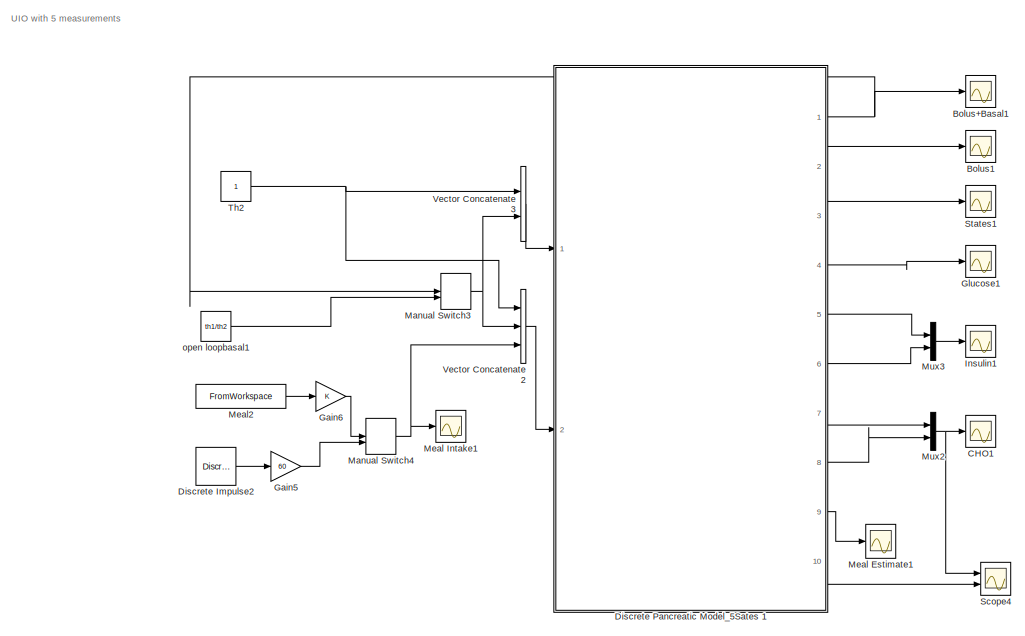
[diagram: root canvas - part 1/2, right side, full height]
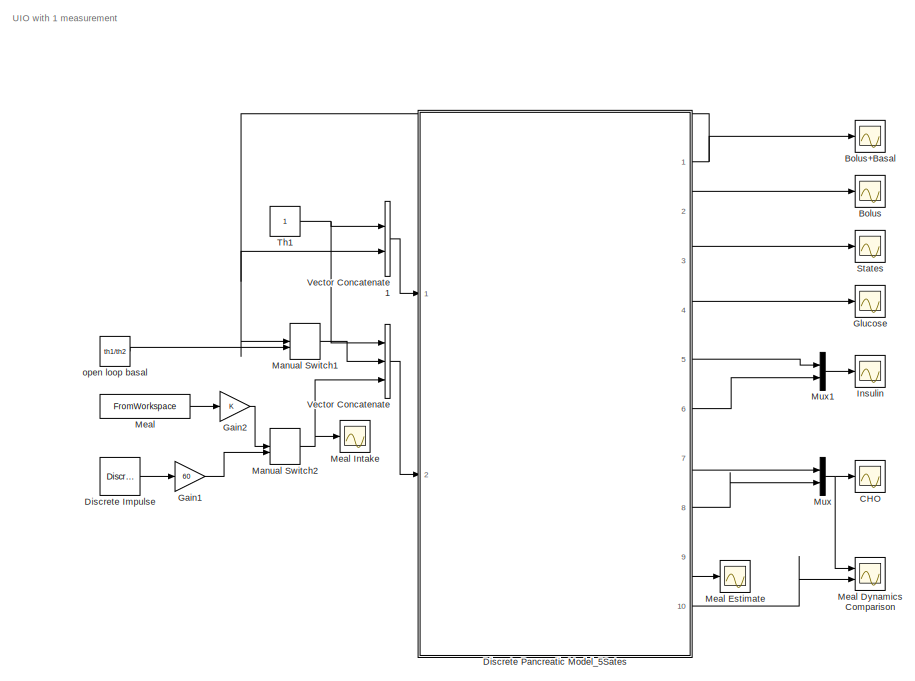
[diagram: root canvas - part 2/2, left side, full height]
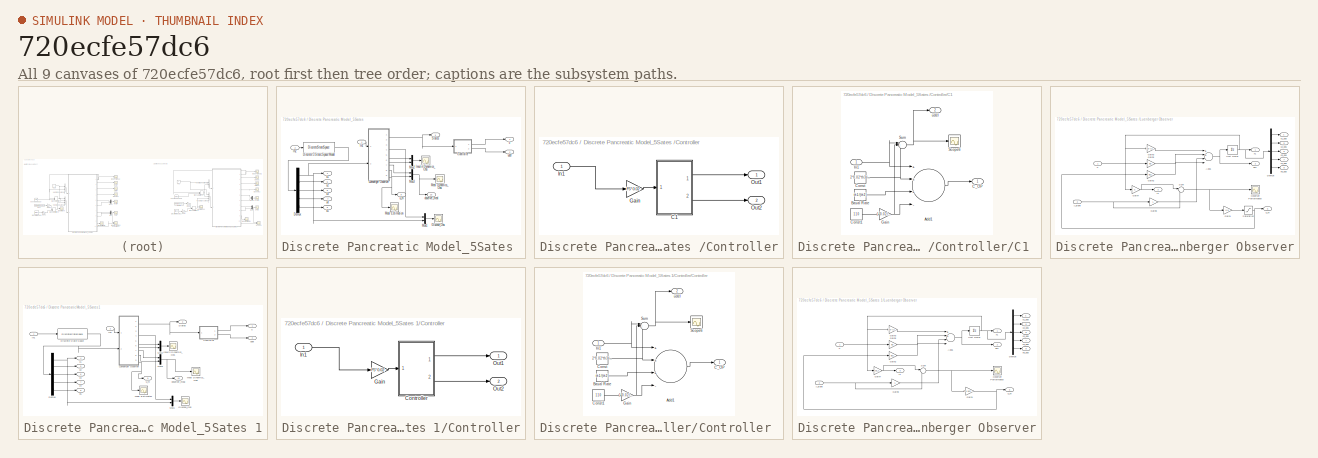
[diagram: thumbnail index - all 9 canvases of the model, root first then tree order]
MODEL slx_720ecfe57dc6
KIND model
CONFIG AbsTol = auto
CONFIG EnableMultiTasking = off
CONFIG FixedStep = auto
CONFIG MaxStep = auto
CONFIG MinStep = auto
CONFIG RelTol = 1e-3
CONFIG SampleTimeConstraint = Unconstrained
CONFIG Solver = VariableStepAuto
CONFIG SolverName = VariableStepAuto
CONFIG StartTime = 0.0
CONFIG StopTime = 1500.0
BLOCK [Scope] Bolus
  Floating = off
  NumInputPorts = 1
  Ports = [1]
  ScopeSpecificationString = Simulink.scopes.TimeScopeBlockCfg('CurrentConfiguration', extmgr.ConfigurationSet(extmgr.Configuration('Core','General UI',true),extmgr.Configuration('Core','Source UI',true),extmgr.Configuration('Sources','WiredSimulink',true,'DataLoggingVariableName','ScopeData3'),extmgr.Configuration('Visuals','Time Domain',true,'SerializedDisplays',{struct('MinYLimReal','-0.01076','MaxYLimReal','0.0901','YLabe...<+1546ch>
BLOCK [Scope] Bolus+Basal
  Floating = off
  NumInputPorts = 1
  Ports = [1]
  ScopeSpecificationString = Simulink.scopes.TimeScopeBlockCfg('CurrentConfiguration', extmgr.ConfigurationSet(extmgr.Configuration('Core','General UI',true,'FigureColor',[1 1 1]),extmgr.Configuration('Core','Source UI',true),extmgr.Configuration('Sources','WiredSimulink',true,'DataLoggingVariableName','ScopeData5'),extmgr.Configuration('Visuals','Time Domain',true,'SerializedDisplays',{struct('MinYLimReal','0.00624','MaxYLim...<+1638ch>
BLOCK [Scope] Bolus+Basal1
  Floating = off
  NumInputPorts = 1
  Ports = [1]
  ScopeSpecificationString = Simulink.scopes.TimeScopeBlockCfg('CurrentConfiguration', extmgr.ConfigurationSet(extmgr.Configuration('Core','General UI',true,'FigureColor',[1 1 1]),extmgr.Configuration('Core','Source UI',true),extmgr.Configuration('Sources','WiredSimulink',true,'DataLoggingVariableName','ScopeData6'),extmgr.Configuration('Visuals','Time Domain',true,'SerializedDisplays',{struct('MinYLimReal','0.00624','MaxYLim...<+1638ch>
BLOCK [Scope] Bolus1
  Floating = off
  NumInputPorts = 1
  Ports = [1]
  ScopeSpecificationString = Simulink.scopes.TimeScopeBlockCfg('CurrentConfiguration', extmgr.ConfigurationSet(extmgr.Configuration('Core','General UI',true),extmgr.Configuration('Core','Source UI',true),extmgr.Configuration('Sources','WiredSimulink',true,'DataLoggingVariableName','ScopeData3'),extmgr.Configuration('Visuals','Time Domain',true,'SerializedDisplays',{struct('MinYLimReal','-0.01076','MaxYLimReal','0.0901','YLabe...<+1546ch>
BLOCK [Scope] CHO
  Floating = off
  NumInputPorts = 1
  Ports = [1]
  ScopeSpecificationString = Simulink.scopes.TimeScopeBlockCfg('CurrentConfiguration', extmgr.ConfigurationSet(extmgr.Configuration('Core','General UI',true,'FigureColor',[1 1 1]),extmgr.Configuration('Core','Source UI',true),extmgr.Configuration('Sources','WiredSimulink',true,'DataLoggingVariableName','ScopeData7'),extmgr.Configuration('Visuals','Time Domain',true,'SerializedDisplays',{struct('MinYLimReal','-0.07549','MaxYLi...<+1869ch>
BLOCK [Scope] CHO1
  Floating = off
  NumInputPorts = 1
  Ports = [1]
  ScopeSpecificationString = Simulink.scopes.TimeScopeBlockCfg('CurrentConfiguration', extmgr.ConfigurationSet(extmgr.Configuration('Core','General UI',true,'FigureColor',[1 1 1]),extmgr.Configuration('Core','Source UI',true),extmgr.Configuration('Sources','WiredSimulink',true,'DataLoggingVariableName','ScopeData8'),extmgr.Configuration('Visuals','Time Domain',true,'SerializedDisplays',{struct('MinYLimReal','-0.07549','MaxYLi...<+1869ch>
BLOCK [Reference] Discrete Impulse  REF=dspsrcs4/Discrete 
Impulse
  Ports = [0, 1]
  SourceBlock = dspsrcs4/Discrete \nImpulse
  SourceProductBaseCode = DS
  SourceProductName = DSP System Toolbox
  SourceType = Discrete Impulse
BLOCK [Reference] Discrete Impulse2  REF=dspsrcs4/Discrete 
Impulse
  Ports = [0, 1]
  SourceBlock = dspsrcs4/Discrete \nImpulse
  SourceProductBaseCode = DS
  SourceProductName = DSP System Toolbox
  SourceType = Discrete Impulse
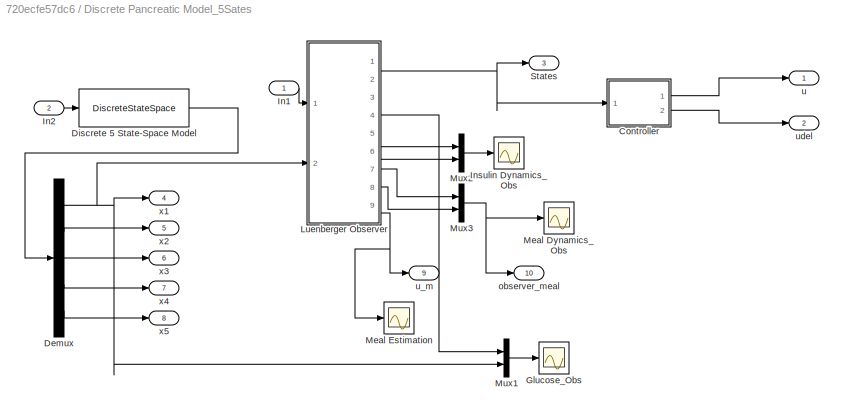
BLOCK [SubSystem] Discrete Pancreatic Model_5Sates 
  Ports = [2, 10]
  RequestExecContextInheritance = off
BLOCK [SubSystem] Discrete Pancreatic Model_5Sates /Controller
  Ports = [1, 2]
  RequestExecContextInheritance = off
BLOCK [SubSystem] Discrete Pancreatic Model_5Sates /Controller/C1 
  Ports = [1, 2]
  RequestExecContextInheritance = off
BLOCK [Sum] Discrete Pancreatic Model_5Sates /Controller/C1 /Add1
  InputSameDT = off
  Inputs = +++-
  OutDataTypeStr = Inherit: Inherit via internal rule
  Ports = [4, 1]
  SaturateOnIntegerOverflow = off
BLOCK [Constant] Discrete Pancreatic Model_5Sates /Controller/C1 /Basal Rate
  Value = th1/(th2)
  VectorParams1D = off
BLOCK [Outport] Discrete Pancreatic Model_5Sates /Controller/C1 /C_OP
  IconDisplay = Port number
BLOCK [Constant] Discrete Pancreatic Model_5Sates /Controller/C1 /Const
  Value = 2*0.02*th3*th1/(th2)
  VectorParams1D = off
BLOCK [Constant] Discrete Pancreatic Model_5Sates /Controller/C1 /Const1
  Value = 110
  VectorParams1D = off
BLOCK [Gain] Discrete Pancreatic Model_5Sates /Controller/C1 /Gain
  Gain = 1*0.02/(th2)
  OutDataTypeStr = Inherit: Inherit via internal rule
  ParamDataTypeStr = Inherit: Inherit via internal rule
  SaturateOnIntegerOverflow = off
BLOCK [Inport] Discrete Pancreatic Model_5Sates /Controller/C1 /In1
  IconDisplay = Port number
BLOCK [Scope] Discrete Pancreatic Model_5Sates /Controller/C1 /Scope6
  Floating = off
  NumInputPorts = 1
  Ports = [1]
  ScopeSpecificationString = Simulink.scopes.TimeScopeBlockCfg('CurrentConfiguration', extmgr.ConfigurationSet(extmgr.Configuration('Core','General UI',true),extmgr.Configuration('Core','Source UI',true),extmgr.Configuration('Sources','WiredSimulink',true,'DataLoggingVariableName','ScopeData2'),extmgr.Configuration('Visuals','Time Domain',true,'SerializedDisplays',{struct('MinYLimReal','-0.02864','MaxYLimReal','0.20318','YLab...<+1406ch>
BLOCK [Sum] Discrete Pancreatic Model_5Sates /Controller/C1 /Sum
  IconShape = round
  InputSameDT = off
  Inputs = |+-+
  OutDataTypeStr = Inherit: Inherit via internal rule
  Ports = [3, 1]
  SaturateOnIntegerOverflow = off
BLOCK [Outport] Discrete Pancreatic Model_5Sates /Controller/C1 /udel
  IconDisplay = Port number
  Port = 2
BLOCK [Gain] Discrete Pancreatic Model_5Sates /Controller/Gain
  Gain = F5*0.02
  Multiplication = Matrix(K*u)
  OutDataTypeStr = Inherit: Inherit via internal rule
  ParamDataTypeStr = Inherit: Inherit via internal rule
  SaturateOnIntegerOverflow = off
BLOCK [Inport] Discrete Pancreatic Model_5Sates /Controller/In1
  IconDisplay = Port number
BLOCK [Outport] Discrete Pancreatic Model_5Sates /Controller/Out1
  IconDisplay = Port number
BLOCK [Outport] Discrete Pancreatic Model_5Sates /Controller/Out2
  IconDisplay = Port number
  Port = 2
BLOCK [Demux] Discrete Pancreatic Model_5Sates /Demux
  DisplayOption = bar
  Outputs = 5
  Ports = [1, 5]
BLOCK [DiscreteStateSpace] Discrete Pancreatic Model_5Sates /Discrete 5 State-Space Model
  A = A5
  B = B5
  C = C5
  D = D5
  InitialCondition = [110; th1/th2; th1/th2; 0; 0]
  SampleTime = -1
  StateName = Glycemia
BLOCK [Scope] Discrete Pancreatic Model_5Sates /Glucose_Obs
  Floating = off
  NumInputPorts = 1
  Ports = [1]
  ScopeSpecificationString = Simulink.scopes.TimeScopeBlockCfg('CurrentConfiguration', extmgr.ConfigurationSet(extmgr.Configuration('Core','General UI',true,'FigureColor',[1 1 1]),extmgr.Configuration('Core','Source UI',true),extmgr.Configuration('Sources','WiredSimulink',true,'DataLoggingVariableName','ScopeData1'),extmgr.Configuration('Visuals','Time Domain',true,'SerializedDisplays',{struct('MinYLimReal','81.83648','MaxYLi...<+1861ch>
BLOCK [Inport] Discrete Pancreatic Model_5Sates /In1
  IconDisplay = Port number
BLOCK [Inport] Discrete Pancreatic Model_5Sates /In2
  IconDisplay = Port number
  Port = 2
BLOCK [Scope] Discrete Pancreatic Model_5Sates /Insulin Dynamics_Obs
  Floating = off
  NumInputPorts = 1
  Ports = [1]
  ScopeSpecificationString = Simulink.scopes.TimeScopeBlockCfg('CurrentConfiguration', extmgr.ConfigurationSet(extmgr.Configuration('Core','General UI',true,'FigureColor',[1 1 1]),extmgr.Configuration('Core','Source UI',true),extmgr.Configuration('Sources','WiredSimulink',true,'DataLoggingVariableName','ScopeData2'),extmgr.Configuration('Visuals','Time Domain',true,'SerializedDisplays',{struct('MinYLimReal','0.00955','MaxYLim...<+1889ch>
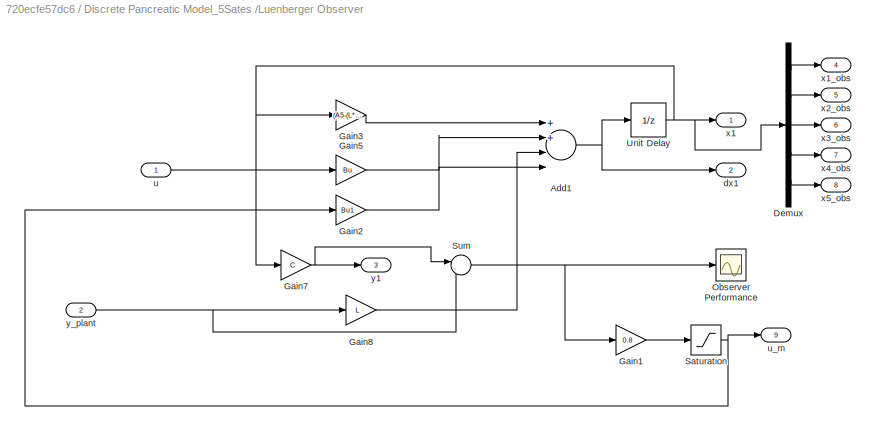
BLOCK [SubSystem] Discrete Pancreatic Model_5Sates /Luenberger Observer
  Ports = [2, 9]
  RequestExecContextInheritance = off
BLOCK [Sum] Discrete Pancreatic Model_5Sates /Luenberger Observer/Add1
  InputSameDT = off
  Inputs = 4
  OutDataTypeStr = Inherit: Inherit via internal rule
  Ports = [4, 1]
  SaturateOnIntegerOverflow = off
BLOCK [Demux] Discrete Pancreatic Model_5Sates /Luenberger Observer/Demux
  DisplayOption = bar
  Outputs = 5
  Ports = [1, 5]
BLOCK [Gain] Discrete Pancreatic Model_5Sates /Luenberger Observer/Gain1
  Gain = 0.8
  Multiplication = Matrix(K*u)
  OutDataTypeStr = Inherit: Inherit via internal rule
  ParamDataTypeStr = Inherit: Inherit via internal rule
  SaturateOnIntegerOverflow = off
BLOCK [Gain] Discrete Pancreatic Model_5Sates /Luenberger Observer/Gain2
  Gain = Bu1
  Multiplication = Matrix(K*u)
  OutDataTypeStr = Inherit: Inherit via internal rule
  ParamDataTypeStr = Inherit: Inherit via internal rule
  SaturateOnIntegerOverflow = off
BLOCK [Gain] Discrete Pancreatic Model_5Sates /Luenberger Observer/Gain3
  Gain = (A5-(L*C))
  Multiplication = Matrix(K*u)
  OutDataTypeStr = Inherit: Inherit via internal rule
  ParamDataTypeStr = Inherit: Inherit via internal rule
  SaturateOnIntegerOverflow = off
BLOCK [Gain] Discrete Pancreatic Model_5Sates /Luenberger Observer/Gain5
  Gain = Bu
  Multiplication = Matrix(K*u)
  OutDataTypeStr = Inherit: Inherit via internal rule
  ParamDataTypeStr = Inherit: Inherit via internal rule
  SaturateOnIntegerOverflow = off
BLOCK [Gain] Discrete Pancreatic Model_5Sates /Luenberger Observer/Gain7
  Gain = C
  Multiplication = Matrix(K*u)
  OutDataTypeStr = Inherit: Inherit via internal rule
  ParamDataTypeStr = Inherit: Inherit via internal rule
  SaturateOnIntegerOverflow = off
BLOCK [Gain] Discrete Pancreatic Model_5Sates /Luenberger Observer/Gain8
  Gain = L
  OutDataTypeStr = Inherit: Inherit via internal rule
  ParamDataTypeStr = Inherit: Inherit via internal rule
  SaturateOnIntegerOverflow = off
BLOCK [Scope] Discrete Pancreatic Model_5Sates /Luenberger Observer/Observer Performance
  Floating = off
  NumInputPorts = 1
  Ports = [1]
  ScopeSpecificationString = Simulink.scopes.TimeScopeBlockCfg('CurrentConfiguration', extmgr.ConfigurationSet(extmgr.Configuration('Core','General UI',true,'FigureColor',[1 1 1]),extmgr.Configuration('Core','Source UI',true),extmgr.Configuration('Sources','WiredSimulink',true,'DataLoggingVariableName','ScopeData1'),extmgr.Configuration('Visuals','Time Domain',true,'SerializedDisplays',{struct('MinYLimReal','-0.16609','MaxYLi...<+1708ch>
BLOCK [Saturate] Discrete Pancreatic Model_5Sates /Luenberger Observer/Saturation
  InputPortMap = u0
  LowerLimit = 0
  Ports = [1, 1]
  UpperLimit = 30
BLOCK [Sum] Discrete Pancreatic Model_5Sates /Luenberger Observer/Sum
  IconShape = round
  InputSameDT = off
  Inputs = |-+
  OutDataTypeStr = Inherit: Inherit via internal rule
  Ports = [2, 1]
  SaturateOnIntegerOverflow = off
BLOCK [UnitDelay] Discrete Pancreatic Model_5Sates /Luenberger Observer/Unit Delay
  HasFrameUpgradeWarning = on
  InitialCondition = [110; th1/th2; th1/th2; 0; 0]
  SampleTime = -1
BLOCK [Outport] Discrete Pancreatic Model_5Sates /Luenberger Observer/dx1
  IconDisplay = Port number
  Port = 2
BLOCK [Inport] Discrete Pancreatic Model_5Sates /Luenberger Observer/u
  IconDisplay = Port number
BLOCK [Outport] Discrete Pancreatic Model_5Sates /Luenberger Observer/u_m
  IconDisplay = Port number
  Port = 9
BLOCK [Outport] Discrete Pancreatic Model_5Sates /Luenberger Observer/x1
  IconDisplay = Port number
BLOCK [Outport] Discrete Pancreatic Model_5Sates /Luenberger Observer/x1_obs
  IconDisplay = Port number
  Port = 4
BLOCK [Outport] Discrete Pancreatic Model_5Sates /Luenberger Observer/x2_obs
  IconDisplay = Port number
  Port = 5
BLOCK [Outport] Discrete Pancreatic Model_5Sates /Luenberger Observer/x3_obs
  IconDisplay = Port number
  Port = 6
BLOCK [Outport] Discrete Pancreatic Model_5Sates /Luenberger Observer/x4_obs
  IconDisplay = Port number
  Port = 7
BLOCK [Outport] Discrete Pancreatic Model_5Sates /Luenberger Observer/x5_obs
  IconDisplay = Port number
  Port = 8
BLOCK [Outport] Discrete Pancreatic Model_5Sates /Luenberger Observer/y1
  IconDisplay = Port number
  Port = 3
BLOCK [Inport] Discrete Pancreatic Model_5Sates /Luenberger Observer/y_plant 
  IconDisplay = Port number
  Port = 2
BLOCK [Scope] Discrete Pancreatic Model_5Sates /Meal Dynamics_Obs
  Floating = off
  NumInputPorts = 1
  Ports = [1]
  ScopeSpecificationString = Simulink.scopes.TimeScopeBlockCfg('CurrentConfiguration', extmgr.ConfigurationSet(extmgr.Configuration('Core','General UI',true,'FigureColor',[1 1 1]),extmgr.Configuration('Core','Source UI',true),extmgr.Configuration('Sources','WiredSimulink',true,'DataLoggingVariableName','ScopeData3'),extmgr.Configuration('Visuals','Time Domain',true,'SerializedDisplays',{struct('MinYLimReal','-0.35106','MaxYLi...<+1884ch>
BLOCK [Scope] Discrete Pancreatic Model_5Sates /Meal Estimation
  Floating = off
  NumInputPorts = 1
  Ports = [1]
  ScopeSpecificationString = Simulink.scopes.TimeScopeBlockCfg('CurrentConfiguration', extmgr.ConfigurationSet(extmgr.Configuration('Core','General UI',true,'FigureColor',[1 1 1]),extmgr.Configuration('Core','Source UI',true),extmgr.Configuration('Sources','WiredSimulink',true,'DataLoggingVariableName','ScopeData10'),extmgr.Configuration('Visuals','Time Domain',true,'SerializedDisplays',{struct('MinYLimReal','-0.73985','MaxYL...<+1868ch>
BLOCK [Mux] Discrete Pancreatic Model_5Sates /Mux1
  DisplayOption = bar
  Inputs = 2
  Ports = [2, 1]
BLOCK [Mux] Discrete Pancreatic Model_5Sates /Mux2
  DisplayOption = bar
  Inputs = 2
  Ports = [2, 1]
BLOCK [Mux] Discrete Pancreatic Model_5Sates /Mux3
  DisplayOption = bar
  Inputs = 2
  Ports = [2, 1]
BLOCK [Outport] Discrete Pancreatic Model_5Sates /States
  IconDisplay = Port number
  Port = 3
BLOCK [Outport] Discrete Pancreatic Model_5Sates /observer_meal 
  IconDisplay = Port number
  Port = 10
BLOCK [Outport] Discrete Pancreatic Model_5Sates /u
  IconDisplay = Port number
BLOCK [Outport] Discrete Pancreatic Model_5Sates /u_m
  IconDisplay = Port number
  Port = 9
BLOCK [Outport] Discrete Pancreatic Model_5Sates /udel
  IconDisplay = Port number
  Port = 2
BLOCK [Outport] Discrete Pancreatic Model_5Sates /x1
  IconDisplay = Port number
  Port = 4
BLOCK [Outport] Discrete Pancreatic Model_5Sates /x2
  IconDisplay = Port number
  Port = 5
BLOCK [Outport] Discrete Pancreatic Model_5Sates /x3
  IconDisplay = Port number
  Port = 6
BLOCK [Outport] Discrete Pancreatic Model_5Sates /x4
  IconDisplay = Port number
  Port = 7
BLOCK [Outport] Discrete Pancreatic Model_5Sates /x5
  IconDisplay = Port number
  Port = 8
BLOCK [SubSystem] Discrete Pancreatic Model_5Sates 1
  Ports = [2, 10]
  RequestExecContextInheritance = off
BLOCK [SubSystem] Discrete Pancreatic Model_5Sates 1/Controller
  Ports = [1, 2]
  RequestExecContextInheritance = off
BLOCK [SubSystem] Discrete Pancreatic Model_5Sates 1/Controller/Controller 
  Ports = [1, 2]
  RequestExecContextInheritance = off
BLOCK [Sum] Discrete Pancreatic Model_5Sates 1/Controller/Controller /Add1
  InputSameDT = off
  Inputs = +++-
  OutDataTypeStr = Inherit: Inherit via internal rule
  Ports = [4, 1]
  SaturateOnIntegerOverflow = off
BLOCK [Constant] Discrete Pancreatic Model_5Sates 1/Controller/Controller /Basal Rate
  Value = th1/(th2)
  VectorParams1D = off
BLOCK [Outport] Discrete Pancreatic Model_5Sates 1/Controller/Controller /C_OP
  IconDisplay = Port number
BLOCK [Constant] Discrete Pancreatic Model_5Sates 1/Controller/Controller /Const
  Value = 2*0.02*th3*th1/(th2)
  VectorParams1D = off
BLOCK [Constant] Discrete Pancreatic Model_5Sates 1/Controller/Controller /Const1
  Value = 110
  VectorParams1D = off
BLOCK [Gain] Discrete Pancreatic Model_5Sates 1/Controller/Controller /Gain
  Gain = 1*0.02/(th2)
  OutDataTypeStr = Inherit: Inherit via internal rule
  ParamDataTypeStr = Inherit: Inherit via internal rule
  SaturateOnIntegerOverflow = off
BLOCK [Inport] Discrete Pancreatic Model_5Sates 1/Controller/Controller /In1
  IconDisplay = Port number
BLOCK [Scope] Discrete Pancreatic Model_5Sates 1/Controller/Controller /Scope6
  Floating = off
  NumInputPorts = 1
  Ports = [1]
  ScopeSpecificationString = Simulink.scopes.TimeScopeBlockCfg('CurrentConfiguration', extmgr.ConfigurationSet(extmgr.Configuration('Core','General UI',true),extmgr.Configuration('Core','Source UI',true),extmgr.Configuration('Sources','WiredSimulink',true,'DataLoggingVariableName','ScopeData2'),extmgr.Configuration('Visuals','Time Domain',true,'SerializedDisplays',{struct('MinYLimReal','-0.02864','MaxYLimReal','0.20318','YLab...<+1406ch>
BLOCK [Sum] Discrete Pancreatic Model_5Sates 1/Controller/Controller /Sum
  IconShape = round
  InputSameDT = off
  Inputs = |+-+
  OutDataTypeStr = Inherit: Inherit via internal rule
  Ports = [3, 1]
  SaturateOnIntegerOverflow = off
BLOCK [Outport] Discrete Pancreatic Model_5Sates 1/Controller/Controller /udel
  IconDisplay = Port number
  Port = 2
BLOCK [Gain] Discrete Pancreatic Model_5Sates 1/Controller/Gain
  Gain = F5*0.02
  Multiplication = Matrix(K*u)
  OutDataTypeStr = Inherit: Inherit via internal rule
  ParamDataTypeStr = Inherit: Inherit via internal rule
  SaturateOnIntegerOverflow = off
BLOCK [Inport] Discrete Pancreatic Model_5Sates 1/Controller/In1
  IconDisplay = Port number
BLOCK [Outport] Discrete Pancreatic Model_5Sates 1/Controller/Out1
  IconDisplay = Port number
BLOCK [Outport] Discrete Pancreatic Model_5Sates 1/Controller/Out2
  IconDisplay = Port number
  Port = 2
BLOCK [Demux] Discrete Pancreatic Model_5Sates 1/Demux
  DisplayOption = bar
  Outputs = 5
  Ports = [1, 5]
BLOCK [DiscreteStateSpace] Discrete Pancreatic Model_5Sates 1/Discrete State-Space
  A = A5
  B = B5
  C = C5
  D = D5
  InitialCondition = [110; th1/th2; th1/th2; 0; 0]
  SampleTime = -1
  StateName = Glycemia
BLOCK [Scope] Discrete Pancreatic Model_5Sates 1/Glucose_Obs
  Floating = off
  NumInputPorts = 1
  Ports = [1]
  ScopeSpecificationString = Simulink.scopes.TimeScopeBlockCfg('CurrentConfiguration', extmgr.ConfigurationSet(extmgr.Configuration('Core','General UI',true,'FigureColor',[1 1 1]),extmgr.Configuration('Core','Source UI',true),extmgr.Configuration('Sources','WiredSimulink',true,'DataLoggingVariableName','ScopeData1'),extmgr.Configuration('Visuals','Time Domain',true,'SerializedDisplays',{struct('MinYLimReal','94.59061','MaxYLi...<+1861ch>
BLOCK [Inport] Discrete Pancreatic Model_5Sates 1/In1
  IconDisplay = Port number
BLOCK [Inport] Discrete Pancreatic Model_5Sates 1/In2
  IconDisplay = Port number
  Port = 2
BLOCK [Scope] Discrete Pancreatic Model_5Sates 1/Insulin Dynamics_Obs
  Floating = off
  NumInputPorts = 1
  Ports = [1]
  ScopeSpecificationString = Simulink.scopes.TimeScopeBlockCfg('CurrentConfiguration', extmgr.ConfigurationSet(extmgr.Configuration('Core','General UI',true,'FigureColor',[1 1 1]),extmgr.Configuration('Core','Source UI',true),extmgr.Configuration('Sources','WiredSimulink',true,'DataLoggingVariableName','ScopeData2'),extmgr.Configuration('Visuals','Time Domain',true,'SerializedDisplays',{struct('MinYLimReal','0.00955','MaxYLim...<+1889ch>
BLOCK [SubSystem] Discrete Pancreatic Model_5Sates 1/Luenberger Observer
  Ports = [2, 9]
  RequestExecContextInheritance = off
BLOCK [Sum] Discrete Pancreatic Model_5Sates 1/Luenberger Observer/Add1
  InputSameDT = off
  Inputs = 4
  OutDataTypeStr = Inherit: Inherit via internal rule
  Ports = [4, 1]
  SaturateOnIntegerOverflow = off
BLOCK [Demux] Discrete Pancreatic Model_5Sates 1/Luenberger Observer/Demux
  DisplayOption = bar
  Outputs = 5
  Ports = [1, 5]
BLOCK [Gain] Discrete Pancreatic Model_5Sates 1/Luenberger Observer/Gain1
  Gain = [0.952 -695.80 -710.02 115.23 134.28] *0.15
  Multiplication = Matrix(K*u)
  OutDataTypeStr = Inherit: Inherit via internal rule
  ParamDataTypeStr = Inherit: Inherit via internal rule
  SaturateOnIntegerOverflow = off
BLOCK [Gain] Discrete Pancreatic Model_5Sates 1/Luenberger Observer/Gain2
  Gain = Bu1
  Multiplication = Matrix(K*u)
  OutDataTypeStr = Inherit: Inherit via internal rule
  ParamDataTypeStr = Inherit: Inherit via internal rule
  SaturateOnIntegerOverflow = off
BLOCK [Gain] Discrete Pancreatic Model_5Sates 1/Luenberger Observer/Gain3
  Gain = (A5-(L*C))
  Multiplication = Matrix(K*u)
  OutDataTypeStr = Inherit: Inherit via internal rule
  ParamDataTypeStr = Inherit: Inherit via internal rule
  SaturateOnIntegerOverflow = off
BLOCK [Gain] Discrete Pancreatic Model_5Sates 1/Luenberger Observer/Gain5
  Gain = Bu
  Multiplication = Matrix(K*u)
  OutDataTypeStr = Inherit: Inherit via internal rule
  ParamDataTypeStr = Inherit: Inherit via internal rule
  SaturateOnIntegerOverflow = off
BLOCK [Gain] Discrete Pancreatic Model_5Sates 1/Luenberger Observer/Gain7
  Gain = C5_c
  Multiplication = Matrix(K*u)
  OutDataTypeStr = Inherit: Inherit via internal rule
  ParamDataTypeStr = Inherit: Inherit via internal rule
  SaturateOnIntegerOverflow = off
BLOCK [Gain] Discrete Pancreatic Model_5Sates 1/Luenberger Observer/Gain8
  Gain = L
  OutDataTypeStr = Inherit: Inherit via internal rule
  ParamDataTypeStr = Inherit: Inherit via internal rule
  SaturateOnIntegerOverflow = off
BLOCK [Scope] Discrete Pancreatic Model_5Sates 1/Luenberger Observer/Observer Performance
  Floating = off
  NumInputPorts = 1
  Ports = [1]
  ScopeSpecificationString = Simulink.scopes.TimeScopeBlockCfg('CurrentConfiguration', extmgr.ConfigurationSet(extmgr.Configuration('Core','General UI',true,'FigureColor',[1 1 1]),extmgr.Configuration('Core','Source UI',true),extmgr.Configuration('Sources','WiredSimulink',true,'DataLoggingVariableName','ScopeData1'),extmgr.Configuration('Visuals','Time Domain',true,'SerializedDisplays',{struct('MinYLimReal','-0.16609','MaxYLi...<+1740ch>
BLOCK [Sum] Discrete Pancreatic Model_5Sates 1/Luenberger Observer/Sum
  IconShape = round
  InputSameDT = off
  Inputs = |-+
  OutDataTypeStr = Inherit: Inherit via internal rule
  Ports = [2, 1]
  SaturateOnIntegerOverflow = off
BLOCK [UnitDelay] Discrete Pancreatic Model_5Sates 1/Luenberger Observer/Unit Delay
  HasFrameUpgradeWarning = on
  InitialCondition = [110; th1/th2; th1/th2; 0; 0]
  SampleTime = -1
BLOCK [Outport] Discrete Pancreatic Model_5Sates 1/Luenberger Observer/dx1
  IconDisplay = Port number
  Port = 2
BLOCK [Inport] Discrete Pancreatic Model_5Sates 1/Luenberger Observer/u
  IconDisplay = Port number
BLOCK [Outport] Discrete Pancreatic Model_5Sates 1/Luenberger Observer/u_m
  IconDisplay = Port number
  Port = 9
BLOCK [Outport] Discrete Pancreatic Model_5Sates 1/Luenberger Observer/x1
  IconDisplay = Port number
BLOCK [Outport] Discrete Pancreatic Model_5Sates 1/Luenberger Observer/x1_obs
  IconDisplay = Port number
  Port = 4
BLOCK [Outport] Discrete Pancreatic Model_5Sates 1/Luenberger Observer/x2_obs
  IconDisplay = Port number
  Port = 5
BLOCK [Outport] Discrete Pancreatic Model_5Sates 1/Luenberger Observer/x3_obs
  IconDisplay = Port number
  Port = 6
BLOCK [Outport] Discrete Pancreatic Model_5Sates 1/Luenberger Observer/x4_obs
  IconDisplay = Port number
  Port = 7
BLOCK [Outport] Discrete Pancreatic Model_5Sates 1/Luenberger Observer/x5_obs
  IconDisplay = Port number
  Port = 8
BLOCK [Outport] Discrete Pancreatic Model_5Sates 1/Luenberger Observer/y1
  IconDisplay = Port number
  Port = 3
BLOCK [Inport] Discrete Pancreatic Model_5Sates 1/Luenberger Observer/y_plant 
  IconDisplay = Port number
  Port = 2
BLOCK [Scope] Discrete Pancreatic Model_5Sates 1/Meal Dynamics_Obs
  Floating = off
  NumInputPorts = 1
  Ports = [1]
  ScopeSpecificationString = Simulink.scopes.TimeScopeBlockCfg('CurrentConfiguration', extmgr.ConfigurationSet(extmgr.Configuration('Core','General UI',true,'FigureColor',[1 1 1]),extmgr.Configuration('Core','Source UI',true),extmgr.Configuration('Sources','WiredSimulink',true,'DataLoggingVariableName','ScopeData3'),extmgr.Configuration('Visuals','Time Domain',true,'SerializedDisplays',{struct('MinYLimReal','-0.31972','MaxYLi...<+1890ch>
BLOCK [Scope] Discrete Pancreatic Model_5Sates 1/Meal Estimate1
  Floating = off
  NumInputPorts = 1
  Ports = [1]
  ScopeSpecificationString = Simulink.scopes.TimeScopeBlockCfg('CurrentConfiguration', extmgr.ConfigurationSet(extmgr.Configuration('Core','General UI',true,'FigureColor',[1 1 1]),extmgr.Configuration('Core','Source UI',true),extmgr.Configuration('Sources','WiredSimulink',true,'DataLoggingVariableName','ScopeData10'),extmgr.Configuration('Visuals','Time Domain',true,'SerializedDisplays',{struct('MinYLimReal','-0.9528','MaxYLi...<+1866ch>
BLOCK [Mux] Discrete Pancreatic Model_5Sates 1/Mux1
  DisplayOption = bar
  Inputs = 2
  Ports = [2, 1]
BLOCK [Mux] Discrete Pancreatic Model_5Sates 1/Mux2
  DisplayOption = bar
  Inputs = 2
  Ports = [2, 1]
BLOCK [Mux] Discrete Pancreatic Model_5Sates 1/Mux3
  DisplayOption = bar
  Inputs = 2
  Ports = [2, 1]
BLOCK [Outport] Discrete Pancreatic Model_5Sates 1/States
  IconDisplay = Port number
  Port = 3
BLOCK [Outport] Discrete Pancreatic Model_5Sates 1/observer_meal 
  IconDisplay = Port number
  Port = 10
BLOCK [Outport] Discrete Pancreatic Model_5Sates 1/u
  IconDisplay = Port number
BLOCK [Outport] Discrete Pancreatic Model_5Sates 1/u_m
  IconDisplay = Port number
  Port = 9
BLOCK [Outport] Discrete Pancreatic Model_5Sates 1/udel
  IconDisplay = Port number
  Port = 2
BLOCK [Outport] Discrete Pancreatic Model_5Sates 1/x1
  IconDisplay = Port number
  Port = 4
BLOCK [Outport] Discrete Pancreatic Model_5Sates 1/x2
  IconDisplay = Port number
  Port = 5
BLOCK [Outport] Discrete Pancreatic Model_5Sates 1/x3
  IconDisplay = Port number
  Port = 6
BLOCK [Outport] Discrete Pancreatic Model_5Sates 1/x4
  IconDisplay = Port number
  Port = 7
BLOCK [Outport] Discrete Pancreatic Model_5Sates 1/x5
  IconDisplay = Port number
  Port = 8
BLOCK [Gain] Gain1
  Gain = 60
  OutDataTypeStr = Inherit: Inherit via internal rule
  ParamDataTypeStr = Inherit: Inherit via internal rule
  SaturateOnIntegerOverflow = off
BLOCK [Gain] Gain2
  OutDataTypeStr = Inherit: Inherit via internal rule
  ParamDataTypeStr = Inherit: Inherit via internal rule
  SaturateOnIntegerOverflow = off
BLOCK [Gain] Gain5
  Gain = 60
  OutDataTypeStr = Inherit: Inherit via internal rule
  ParamDataTypeStr = Inherit: Inherit via internal rule
  SaturateOnIntegerOverflow = off
BLOCK [Gain] Gain6
  OutDataTypeStr = Inherit: Inherit via internal rule
  ParamDataTypeStr = Inherit: Inherit via internal rule
  SaturateOnIntegerOverflow = off
BLOCK [Scope] Glucose
  Floating = off
  NumInputPorts = 1
  Ports = [1]
  ScopeSpecificationString = Simulink.scopes.TimeScopeBlockCfg('CurrentConfiguration', extmgr.ConfigurationSet(extmgr.Configuration('Core','General UI',true,'FigureColor',[1 1 1]),extmgr.Configuration('Core','Source UI',true),extmgr.Configuration('Sources','WiredSimulink',true,'DataLoggingVariableName','ScopeData2'),extmgr.Configuration('Visuals','Time Domain',true,'SerializedDisplays',{struct('MinYLimReal','103.07037','MaxYL...<+1749ch>
BLOCK [Scope] Glucose1
  Floating = off
  NumInputPorts = 1
  Ports = [1]
  ScopeSpecificationString = Simulink.scopes.TimeScopeBlockCfg('CurrentConfiguration', extmgr.ConfigurationSet(extmgr.Configuration('Core','General UI',true,'FigureColor',[1 1 1]),extmgr.Configuration('Core','Source UI',true),extmgr.Configuration('Sources','WiredSimulink',true,'DataLoggingVariableName','ScopeData2'),extmgr.Configuration('Visuals','Time Domain',true,'SerializedDisplays',{struct('MinYLimReal','103.07037','MaxYL...<+1749ch>
BLOCK [Scope] Insulin
  Floating = off
  NumInputPorts = 1
  Ports = [1]
  ScopeSpecificationString = Simulink.scopes.TimeScopeBlockCfg('CurrentConfiguration', extmgr.ConfigurationSet(extmgr.Configuration('Core','General UI',true,'FigureColor',[1 1 1]),extmgr.Configuration('Core','Source UI',true),extmgr.Configuration('Sources','WiredSimulink',true,'DataLoggingVariableName','ScopeData4'),extmgr.Configuration('Visuals','Time Domain',true,'SerializedDisplays',{struct('MinYLimReal','0.01207','MaxYLim...<+1888ch>
BLOCK [Scope] Insulin1
  Floating = off
  NumInputPorts = 1
  Ports = [1]
  ScopeSpecificationString = Simulink.scopes.TimeScopeBlockCfg('CurrentConfiguration', extmgr.ConfigurationSet(extmgr.Configuration('Core','General UI',true,'FigureColor',[1 1 1]),extmgr.Configuration('Core','Source UI',true),extmgr.Configuration('Sources','WiredSimulink',true,'DataLoggingVariableName','ScopeData5'),extmgr.Configuration('Visuals','Time Domain',true,'SerializedDisplays',{struct('MinYLimReal','0.01207','MaxYLim...<+1888ch>
BLOCK [ManualSwitch] Manual Switch1
BLOCK [ManualSwitch] Manual Switch2
BLOCK [ManualSwitch] Manual Switch3
BLOCK [ManualSwitch] Manual Switch4
BLOCK [FromWorkspace] Meal
  SampleTime = 0
  VariableName = [temps'  repas']
  ZeroCross = on
BLOCK [Scope] Meal Dynamics Comparison
  Floating = off
  NumInputPorts = 2
  Ports = [2]
  ScopeSpecificationString = Simulink.scopes.TimeScopeBlockCfg('CurrentConfiguration', extmgr.ConfigurationSet(extmgr.Configuration('Core','General UI',true,'FigureColor',[1 1 1]),extmgr.Configuration('Core','Source UI',true),extmgr.Configuration('Sources','WiredSimulink',true,'DataLoggingVariableName','ScopeData8'),extmgr.Configuration('Visuals','Time Domain',true,'SerializedDisplays',{struct('MinYLimReal','-0.28374','MaxYLi...<+2759ch>
BLOCK [Scope] Meal Estimate
  Floating = off
  NumInputPorts = 1
  Ports = [1]
  ScopeSpecificationString = Simulink.scopes.TimeScopeBlockCfg('CurrentConfiguration', extmgr.ConfigurationSet(extmgr.Configuration('Core','General UI',true,'FigureColor',[1 1 1]),extmgr.Configuration('Core','Source UI',true),extmgr.Configuration('Sources','WiredSimulink',true,'DataLoggingVariableName','ScopeData1'),extmgr.Configuration('Visuals','Time Domain',true,'SerializedDisplays',{struct('MinYLimReal','-0.375','MaxYLimR...<+1789ch>
BLOCK [Scope] Meal Estimate1
  Floating = off
  NumInputPorts = 1
  Ports = [1]
  ScopeSpecificationString = Simulink.scopes.TimeScopeBlockCfg('CurrentConfiguration', extmgr.ConfigurationSet(extmgr.Configuration('Core','General UI',true,'FigureColor',[1 1 1]),extmgr.Configuration('Core','Source UI',true),extmgr.Configuration('Sources','WiredSimulink',true,'DataLoggingVariableName','ScopeData3'),extmgr.Configuration('Visuals','Time Domain',true,'SerializedDisplays',{struct('MinYLimReal','-0.28374','MaxYLi...<+2759ch>
BLOCK [Scope] Meal Intake
  Floating = off
  NumInputPorts = 1
  Ports = [1]
  ScopeSpecificationString = Simulink.scopes.TimeScopeBlockCfg('CurrentConfiguration', extmgr.ConfigurationSet(extmgr.Configuration('Core','General UI',true,'FigureColor',[1 1 1]),extmgr.Configuration('Core','Source UI',true),extmgr.Configuration('Sources','WiredSimulink',true,'DataLoggingVariableName','ScopeData1'),extmgr.Configuration('Visuals','Time Domain',true,'SerializedDisplays',{struct('MinYLimReal','-0.375','MaxYLimR...<+1789ch>
BLOCK [Scope] Meal Intake1
  Floating = off
  NumInputPorts = 1
  Ports = [1]
  ScopeSpecificationString = Simulink.scopes.TimeScopeBlockCfg('CurrentConfiguration', extmgr.ConfigurationSet(extmgr.Configuration('Core','General UI',true,'FigureColor',[1 1 1]),extmgr.Configuration('Core','Source UI',true),extmgr.Configuration('Sources','WiredSimulink',true,'DataLoggingVariableName','ScopeData2'),extmgr.Configuration('Visuals','Time Domain',true,'SerializedDisplays',{struct('MinYLimReal','-0.375','MaxYLimR...<+1789ch>
BLOCK [FromWorkspace] Meal2
  SampleTime = 0
  VariableName = [temps'  repas']
  ZeroCross = on
BLOCK [Mux] Mux
  DisplayOption = bar
  Inputs = 2
  Ports = [2, 1]
BLOCK [Mux] Mux1
  DisplayOption = bar
  Inputs = 2
  Ports = [2, 1]
BLOCK [Mux] Mux2
  DisplayOption = bar
  Inputs = 2
  Ports = [2, 1]
BLOCK [Mux] Mux3
  DisplayOption = bar
  Inputs = 2
  Ports = [2, 1]
BLOCK [Scope] Scope4
  Floating = off
  NumInputPorts = 2
  Ports = [2]
  ScopeSpecificationString = Simulink.scopes.TimeScopeBlockCfg('CurrentConfiguration', extmgr.ConfigurationSet(extmgr.Configuration('Core','General UI',true,'FigureColor',[1 1 1]),extmgr.Configuration('Core','Source UI',true),extmgr.Configuration('Sources','WiredSimulink',true,'DataLoggingVariableName','ScopeData4'),extmgr.Configuration('Visuals','Time Domain',true,'SerializedDisplays',{struct('MinYLimReal','-0.28374','MaxYLi...<+2759ch>
BLOCK [Scope] States
  Floating = off
  NumInputPorts = 1
  Ports = [1]
  ScopeSpecificationString = Simulink.scopes.TimeScopeBlockCfg('CurrentConfiguration', extmgr.ConfigurationSet(extmgr.Configuration('Core','General UI',true),extmgr.Configuration('Core','Source UI',true),extmgr.Configuration('Sources','WiredSimulink',true,'DataLoggingVariableName','ScopeData6'),extmgr.Configuration('Visuals','Time Domain',true,'SerializedDisplays',{struct('MinYLimReal','-1.85197','MaxYLimReal','2.77683','YLab...<+1712ch>
BLOCK [Scope] States1
  Floating = off
  NumInputPorts = 1
  Ports = [1]
  ScopeSpecificationString = Simulink.scopes.TimeScopeBlockCfg('CurrentConfiguration', extmgr.ConfigurationSet(extmgr.Configuration('Core','General UI',true),extmgr.Configuration('Core','Source UI',true),extmgr.Configuration('Sources','WiredSimulink',true,'DataLoggingVariableName','ScopeData7'),extmgr.Configuration('Visuals','Time Domain',true,'SerializedDisplays',{struct('MinYLimReal','-1.85197','MaxYLimReal','2.77683','YLab...<+1515ch>
BLOCK [Constant] Th1
BLOCK [Constant] Th2
BLOCK [Concatenate] Vector Concatenate
  NumInputs = 3
  Ports = [3, 1]
BLOCK [Concatenate] Vector Concatenate1
  Ports = [2, 1]
BLOCK [Concatenate] Vector Concatenate2
  NumInputs = 3
  Ports = [3, 1]
BLOCK [Concatenate] Vector Concatenate3
  Ports = [2, 1]
BLOCK [Constant] open loop basal
  Value = th1/th2
BLOCK [Constant] open loopbasal1
  Value = th1/th2
ANNOTATION (root): UIO with 1 measurement
ANNOTATION (root): UIO with 5 measurements
LINE Discrete Impulse2:1 -> Gain5:1
LINE Discrete Impulse:1 -> Gain1:1
LINE Discrete Pancreatic Model_5Sates /Controller/C1 /Add1:1 -> Discrete Pancreatic Model_5Sates /Controller/C1 /C_OP:1
LINE Discrete Pancreatic Model_5Sates /Controller/C1 /Basal Rate:1 -> Discrete Pancreatic Model_5Sates /Controller/C1 /Add1:3
LINE Discrete Pancreatic Model_5Sates /Controller/C1 /Const1:1 -> Discrete Pancreatic Model_5Sates /Controller/C1 /Gain:1
NET Discrete Pancreatic Model_5Sates /Controller/C1 /Const:1 -> Discrete Pancreatic Model_5Sates /Controller/C1 /Add1:2, Discrete Pancreatic Model_5Sates /Controller/C1 /Sum:3
NET Discrete Pancreatic Model_5Sates /Controller/C1 /Gain:1 -> Discrete Pancreatic Model_5Sates /Controller/C1 /Add1:4, Discrete Pancreatic Model_5Sates /Controller/C1 /Sum:2
NET Discrete Pancreatic Model_5Sates /Controller/C1 /In1:1 -> Discrete Pancreatic Model_5Sates /Controller/C1 /Add1:1, Discrete Pancreatic Model_5Sates /Controller/C1 /Sum:1
NET Discrete Pancreatic Model_5Sates /Controller/C1 /Sum:1 -> Discrete Pancreatic Model_5Sates /Controller/C1 /Scope6:1, Discrete Pancreatic Model_5Sates /Controller/C1 /udel:1
LINE Discrete Pancreatic Model_5Sates /Controller/C1 :1 -> Discrete Pancreatic Model_5Sates /Controller/Out1:1
LINE Discrete Pancreatic Model_5Sates /Controller/C1 :2 -> Discrete Pancreatic Model_5Sates /Controller/Out2:1
LINE Discrete Pancreatic Model_5Sates /Controller/Gain:1 -> Discrete Pancreatic Model_5Sates /Controller/C1 :1
LINE Discrete Pancreatic Model_5Sates /Controller/In1:1 -> Discrete Pancreatic Model_5Sates /Controller/Gain:1
LINE Discrete Pancreatic Model_5Sates /Controller:1 -> Discrete Pancreatic Model_5Sates /u:1
LINE Discrete Pancreatic Model_5Sates /Controller:2 -> Discrete Pancreatic Model_5Sates /udel:1
NET Discrete Pancreatic Model_5Sates /Demux:1 -> Discrete Pancreatic Model_5Sates /Luenberger Observer:2, Discrete Pancreatic Model_5Sates /Mux1:2, Discrete Pancreatic Model_5Sates /x1:1
LINE Discrete Pancreatic Model_5Sates /Demux:2 -> Discrete Pancreatic Model_5Sates /x2:1
LINE Discrete Pancreatic Model_5Sates /Demux:3 -> Discrete Pancreatic Model_5Sates /x3:1
LINE Discrete Pancreatic Model_5Sates /Demux:4 -> Discrete Pancreatic Model_5Sates /x4:1
LINE Discrete Pancreatic Model_5Sates /Demux:5 -> Discrete Pancreatic Model_5Sates /x5:1
LINE Discrete Pancreatic Model_5Sates /Discrete 5 State-Space Model:1 -> Discrete Pancreatic Model_5Sates /Demux:1
LINE Discrete Pancreatic Model_5Sates /In1:1 -> Discrete Pancreatic Model_5Sates /Luenberger Observer:1
LINE Discrete Pancreatic Model_5Sates /In2:1 -> Discrete Pancreatic Model_5Sates /Discrete 5 State-Space Model:1
NET Discrete Pancreatic Model_5Sates /Luenberger Observer/Add1:1 -> Discrete Pancreatic Model_5Sates /Luenberger Observer/Unit Delay:1, Discrete Pancreatic Model_5Sates /Luenberger Observer/dx1:1
LINE Discrete Pancreatic Model_5Sates /Luenberger Observer/Demux:1 -> Discrete Pancreatic Model_5Sates /Luenberger Observer/x1_obs:1
LINE Discrete Pancreatic Model_5Sates /Luenberger Observer/Demux:2 -> Discrete Pancreatic Model_5Sates /Luenberger Observer/x2_obs:1
LINE Discrete Pancreatic Model_5Sates /Luenberger Observer/Demux:3 -> Discrete Pancreatic Model_5Sates /Luenberger Observer/x3_obs:1
LINE Discrete Pancreatic Model_5Sates /Luenberger Observer/Demux:4 -> Discrete Pancreatic Model_5Sates /Luenberger Observer/x4_obs:1
LINE Discrete Pancreatic Model_5Sates /Luenberger Observer/Demux:5 -> Discrete Pancreatic Model_5Sates /Luenberger Observer/x5_obs:1
LINE Discrete Pancreatic Model_5Sates /Luenberger Observer/Gain1:1 -> Discrete Pancreatic Model_5Sates /Luenberger Observer/Saturation:1
LINE Discrete Pancreatic Model_5Sates /Luenberger Observer/Gain2:1 -> Discrete Pancreatic Model_5Sates /Luenberger Observer/Add1:4
LINE Discrete Pancreatic Model_5Sates /Luenberger Observer/Gain3:1 -> Discrete Pancreatic Model_5Sates /Luenberger Observer/Add1:1
LINE Discrete Pancreatic Model_5Sates /Luenberger Observer/Gain5:1 -> Discrete Pancreatic Model_5Sates /Luenberger Observer/Add1:2
NET Discrete Pancreatic Model_5Sates /Luenberger Observer/Gain7:1 -> Discrete Pancreatic Model_5Sates /Luenberger Observer/Sum:1, Discrete Pancreatic Model_5Sates /Luenberger Observer/y1:1
LINE Discrete Pancreatic Model_5Sates /Luenberger Observer/Gain8:1 -> Discrete Pancreatic Model_5Sates /Luenberger Observer/Add1:3
NET Discrete Pancreatic Model_5Sates /Luenberger Observer/Saturation:1 -> Discrete Pancreatic Model_5Sates /Luenberger Observer/Gain2:1, Discrete Pancreatic Model_5Sates /Luenberger Observer/u_m:1
NET Discrete Pancreatic Model_5Sates /Luenberger Observer/Sum:1 -> Discrete Pancreatic Model_5Sates /Luenberger Observer/Gain1:1, Discrete Pancreatic Model_5Sates /Luenberger Observer/Observer Performance:1
NET Discrete Pancreatic Model_5Sates /Luenberger Observer/Unit Delay:1 -> Discrete Pancreatic Model_5Sates /Luenberger Observer/Demux:1, Discrete Pancreatic Model_5Sates /Luenberger Observer/Gain3:1, Discrete Pancreatic Model_5Sates /Luenberger Observer/Gain7:1, Discrete Pancreatic Model_5Sates /Luenberger Observer/x1:1
LINE Discrete Pancreatic Model_5Sates /Luenberger Observer/u:1 -> Discrete Pancreatic Model_5Sates /Luenberger Observer/Gain5:1
NET Discrete Pancreatic Model_5Sates /Luenberger Observer/y_plant :1 -> Discrete Pancreatic Model_5Sates /Luenberger Observer/Gain8:1, Discrete Pancreatic Model_5Sates /Luenberger Observer/Sum:2
NET Discrete Pancreatic Model_5Sates /Luenberger Observer:1 -> Discrete Pancreatic Model_5Sates /Controller:1, Discrete Pancreatic Model_5Sates /States:1
LINE Discrete Pancreatic Model_5Sates /Luenberger Observer:4 -> Discrete Pancreatic Model_5Sates /Mux1:1
LINE Discrete Pancreatic Model_5Sates /Luenberger Observer:5 -> Discrete Pancreatic Model_5Sates /Mux2:1
LINE Discrete Pancreatic Model_5Sates /Luenberger Observer:6 -> Discrete Pancreatic Model_5Sates /Mux2:2
LINE Discrete Pancreatic Model_5Sates /Luenberger Observer:7 -> Discrete Pancreatic Model_5Sates /Mux3:1
LINE Discrete Pancreatic Model_5Sates /Luenberger Observer:8 -> Discrete Pancreatic Model_5Sates /Mux3:2
NET Discrete Pancreatic Model_5Sates /Luenberger Observer:9 -> Discrete Pancreatic Model_5Sates /Meal Estimation:1, Discrete Pancreatic Model_5Sates /u_m:1
LINE Discrete Pancreatic Model_5Sates /Mux1:1 -> Discrete Pancreatic Model_5Sates /Glucose_Obs:1
LINE Discrete Pancreatic Model_5Sates /Mux2:1 -> Discrete Pancreatic Model_5Sates /Insulin Dynamics_Obs:1
NET Discrete Pancreatic Model_5Sates /Mux3:1 -> Discrete Pancreatic Model_5Sates /Meal Dynamics_Obs:1, Discrete Pancreatic Model_5Sates /observer_meal :1
LINE Discrete Pancreatic Model_5Sates 1/Controller/Controller /Add1:1 -> Discrete Pancreatic Model_5Sates 1/Controller/Controller /C_OP:1
LINE Discrete Pancreatic Model_5Sates 1/Controller/Controller /Basal Rate:1 -> Discrete Pancreatic Model_5Sates 1/Controller/Controller /Add1:3
LINE Discrete Pancreatic Model_5Sates 1/Controller/Controller /Const1:1 -> Discrete Pancreatic Model_5Sates 1/Controller/Controller /Gain:1
NET Discrete Pancreatic Model_5Sates 1/Controller/Controller /Const:1 -> Discrete Pancreatic Model_5Sates 1/Controller/Controller /Add1:2, Discrete Pancreatic Model_5Sates 1/Controller/Controller /Sum:3
NET Discrete Pancreatic Model_5Sates 1/Controller/Controller /Gain:1 -> Discrete Pancreatic Model_5Sates 1/Controller/Controller /Add1:4, Discrete Pancreatic Model_5Sates 1/Controller/Controller /Sum:2
NET Discrete Pancreatic Model_5Sates 1/Controller/Controller /In1:1 -> Discrete Pancreatic Model_5Sates 1/Controller/Controller /Add1:1, Discrete Pancreatic Model_5Sates 1/Controller/Controller /Sum:1
NET Discrete Pancreatic Model_5Sates 1/Controller/Controller /Sum:1 -> Discrete Pancreatic Model_5Sates 1/Controller/Controller /Scope6:1, Discrete Pancreatic Model_5Sates 1/Controller/Controller /udel:1
LINE Discrete Pancreatic Model_5Sates 1/Controller/Controller :1 -> Discrete Pancreatic Model_5Sates 1/Controller/Out1:1
LINE Discrete Pancreatic Model_5Sates 1/Controller/Controller :2 -> Discrete Pancreatic Model_5Sates 1/Controller/Out2:1
LINE Discrete Pancreatic Model_5Sates 1/Controller/Gain:1 -> Discrete Pancreatic Model_5Sates 1/Controller/Controller :1
LINE Discrete Pancreatic Model_5Sates 1/Controller/In1:1 -> Discrete Pancreatic Model_5Sates 1/Controller/Gain:1
LINE Discrete Pancreatic Model_5Sates 1/Controller:1 -> Discrete Pancreatic Model_5Sates 1/u:1
LINE Discrete Pancreatic Model_5Sates 1/Controller:2 -> Discrete Pancreatic Model_5Sates 1/udel:1
NET Discrete Pancreatic Model_5Sates 1/Demux:1 -> Discrete Pancreatic Model_5Sates 1/Mux1:2, Discrete Pancreatic Model_5Sates 1/x1:1
LINE Discrete Pancreatic Model_5Sates 1/Demux:2 -> Discrete Pancreatic Model_5Sates 1/x2:1
LINE Discrete Pancreatic Model_5Sates 1/Demux:3 -> Discrete Pancreatic Model_5Sates 1/x3:1
LINE Discrete Pancreatic Model_5Sates 1/Demux:4 -> Discrete Pancreatic Model_5Sates 1/x4:1
LINE Discrete Pancreatic Model_5Sates 1/Demux:5 -> Discrete Pancreatic Model_5Sates 1/x5:1
NET Discrete Pancreatic Model_5Sates 1/Discrete State-Space:1 -> Discrete Pancreatic Model_5Sates 1/Demux:1, Discrete Pancreatic Model_5Sates 1/Luenberger Observer:2
LINE Discrete Pancreatic Model_5Sates 1/In1:1 -> Discrete Pancreatic Model_5Sates 1/Discrete State-Space:1
LINE Discrete Pancreatic Model_5Sates 1/In2:1 -> Discrete Pancreatic Model_5Sates 1/Luenberger Observer:1
NET Discrete Pancreatic Model_5Sates 1/Luenberger Observer/Add1:1 -> Discrete Pancreatic Model_5Sates 1/Luenberger Observer/Unit Delay:1, Discrete Pancreatic Model_5Sates 1/Luenberger Observer/dx1:1
LINE Discrete Pancreatic Model_5Sates 1/Luenberger Observer/Demux:1 -> Discrete Pancreatic Model_5Sates 1/Luenberger Observer/x1_obs:1
LINE Discrete Pancreatic Model_5Sates 1/Luenberger Observer/Demux:2 -> Discrete Pancreatic Model_5Sates 1/Luenberger Observer/x2_obs:1
LINE Discrete Pancreatic Model_5Sates 1/Luenberger Observer/Demux:3 -> Discrete Pancreatic Model_5Sates 1/Luenberger Observer/x3_obs:1
LINE Discrete Pancreatic Model_5Sates 1/Luenberger Observer/Demux:4 -> Discrete Pancreatic Model_5Sates 1/Luenberger Observer/x4_obs:1
LINE Discrete Pancreatic Model_5Sates 1/Luenberger Observer/Demux:5 -> Discrete Pancreatic Model_5Sates 1/Luenberger Observer/x5_obs:1
NET Discrete Pancreatic Model_5Sates 1/Luenberger Observer/Gain1:1 -> Discrete Pancreatic Model_5Sates 1/Luenberger Observer/Gain2:1, Discrete Pancreatic Model_5Sates 1/Luenberger Observer/u_m:1
LINE Discrete Pancreatic Model_5Sates 1/Luenberger Observer/Gain2:1 -> Discrete Pancreatic Model_5Sates 1/Luenberger Observer/Add1:4
LINE Discrete Pancreatic Model_5Sates 1/Luenberger Observer/Gain3:1 -> Discrete Pancreatic Model_5Sates 1/Luenberger Observer/Add1:1
LINE Discrete Pancreatic Model_5Sates 1/Luenberger Observer/Gain5:1 -> Discrete Pancreatic Model_5Sates 1/Luenberger Observer/Add1:2
NET Discrete Pancreatic Model_5Sates 1/Luenberger Observer/Gain7:1 -> Discrete Pancreatic Model_5Sates 1/Luenberger Observer/Sum:1, Discrete Pancreatic Model_5Sates 1/Luenberger Observer/y1:1
LINE Discrete Pancreatic Model_5Sates 1/Luenberger Observer/Gain8:1 -> Discrete Pancreatic Model_5Sates 1/Luenberger Observer/Add1:3
NET Discrete Pancreatic Model_5Sates 1/Luenberger Observer/Sum:1 -> Discrete Pancreatic Model_5Sates 1/Luenberger Observer/Gain1:1, Discrete Pancreatic Model_5Sates 1/Luenberger Observer/Observer Performance:1
NET Discrete Pancreatic Model_5Sates 1/Luenberger Observer/Unit Delay:1 -> Discrete Pancreatic Model_5Sates 1/Luenberger Observer/Demux:1, Discrete Pancreatic Model_5Sates 1/Luenberger Observer/Gain3:1, Discrete Pancreatic Model_5Sates 1/Luenberger Observer/Gain7:1, Discrete Pancreatic Model_5Sates 1/Luenberger Observer/x1:1
LINE Discrete Pancreatic Model_5Sates 1/Luenberger Observer/u:1 -> Discrete Pancreatic Model_5Sates 1/Luenberger Observer/Gain5:1
NET Discrete Pancreatic Model_5Sates 1/Luenberger Observer/y_plant :1 -> Discrete Pancreatic Model_5Sates 1/Luenberger Observer/Gain8:1, Discrete Pancreatic Model_5Sates 1/Luenberger Observer/Sum:2
NET Discrete Pancreatic Model_5Sates 1/Luenberger Observer:1 -> Discrete Pancreatic Model_5Sates 1/Controller:1, Discrete Pancreatic Model_5Sates 1/States:1
LINE Discrete Pancreatic Model_5Sates 1/Luenberger Observer:4 -> Discrete Pancreatic Model_5Sates 1/Mux1:1
LINE Discrete Pancreatic Model_5Sates 1/Luenberger Observer:5 -> Discrete Pancreatic Model_5Sates 1/Mux2:1
LINE Discrete Pancreatic Model_5Sates 1/Luenberger Observer:6 -> Discrete Pancreatic Model_5Sates 1/Mux2:2
LINE Discrete Pancreatic Model_5Sates 1/Luenberger Observer:7 -> Discrete Pancreatic Model_5Sates 1/Mux3:1
LINE Discrete Pancreatic Model_5Sates 1/Luenberger Observer:8 -> Discrete Pancreatic Model_5Sates 1/Mux3:2
NET Discrete Pancreatic Model_5Sates 1/Luenberger Observer:9 -> Discrete Pancreatic Model_5Sates 1/Meal Estimate1:1, Discrete Pancreatic Model_5Sates 1/u_m:1
LINE Discrete Pancreatic Model_5Sates 1/Mux1:1 -> Discrete Pancreatic Model_5Sates 1/Glucose_Obs:1
LINE Discrete Pancreatic Model_5Sates 1/Mux2:1 -> Discrete Pancreatic Model_5Sates 1/Insulin Dynamics_Obs:1
NET Discrete Pancreatic Model_5Sates 1/Mux3:1 -> Discrete Pancreatic Model_5Sates 1/Meal Dynamics_Obs:1, Discrete Pancreatic Model_5Sates 1/observer_meal :1
NET Discrete Pancreatic Model_5Sates 1:1 -> Bolus+Basal1:1, Manual Switch3:1
LINE Discrete Pancreatic Model_5Sates 1:10 -> Scope4:2
LINE Discrete Pancreatic Model_5Sates 1:2 -> Bolus1:1
LINE Discrete Pancreatic Model_5Sates 1:3 -> States1:1
LINE Discrete Pancreatic Model_5Sates 1:4 -> Glucose1:1
LINE Discrete Pancreatic Model_5Sates 1:5 -> Mux3:1
LINE Discrete Pancreatic Model_5Sates 1:6 -> Mux3:2
LINE Discrete Pancreatic Model_5Sates 1:7 -> Mux2:1
LINE Discrete Pancreatic Model_5Sates 1:8 -> Mux2:2
LINE Discrete Pancreatic Model_5Sates 1:9 -> Meal Estimate1:1
NET Discrete Pancreatic Model_5Sates :1 -> Bolus+Basal:1, Manual Switch1:1, Vector Concatenate1:2
LINE Discrete Pancreatic Model_5Sates :10 -> Meal Dynamics Comparison:2
LINE Discrete Pancreatic Model_5Sates :2 -> Bolus:1
LINE Discrete Pancreatic Model_5Sates :3 -> States:1
LINE Discrete Pancreatic Model_5Sates :4 -> Glucose:1
LINE Discrete Pancreatic Model_5Sates :5 -> Mux1:1
LINE Discrete Pancreatic Model_5Sates :6 -> Mux1:2
LINE Discrete Pancreatic Model_5Sates :7 -> Mux:1
LINE Discrete Pancreatic Model_5Sates :8 -> Mux:2
LINE Discrete Pancreatic Model_5Sates :9 -> Meal Estimate:1
LINE Gain1:1 -> Manual Switch2:2
LINE Gain2:1 -> Manual Switch2:1
LINE Gain5:1 -> Manual Switch4:2
LINE Gain6:1 -> Manual Switch4:1
LINE Manual Switch1:1 -> Vector Concatenate:2
NET Manual Switch2:1 -> Meal Intake:1, Vector Concatenate:3
NET Manual Switch3:1 -> Vector Concatenate2:2, Vector Concatenate3:2
NET Manual Switch4:1 -> Meal Intake1:1, Vector Concatenate2:3
LINE Meal2:1 -> Gain6:1
LINE Meal:1 -> Gain2:1
LINE Mux1:1 -> Insulin:1
NET Mux2:1 -> CHO1:1, Scope4:1
LINE Mux3:1 -> Insulin1:1
NET Mux:1 -> CHO:1, Meal Dynamics Comparison:1
NET Th1:1 -> Vector Concatenate1:1, Vector Concatenate:1
NET Th2:1 -> Vector Concatenate2:1, Vector Concatenate3:1
LINE Vector Concatenate1:1 -> Discrete Pancreatic Model_5Sates :1
LINE Vector Concatenate2:1 -> Discrete Pancreatic Model_5Sates 1:2
LINE Vector Concatenate3:1 -> Discrete Pancreatic Model_5Sates 1:1
LINE Vector Concatenate:1 -> Discrete Pancreatic Model_5Sates :2
LINE open loop basal:1 -> Manual Switch1:2
LINE open loopbasal1:1 -> Manual Switch3:2
note: NET lines group one-source signal fan-out (src -> all destinations, sorted); 1:1 wires keep LINE
